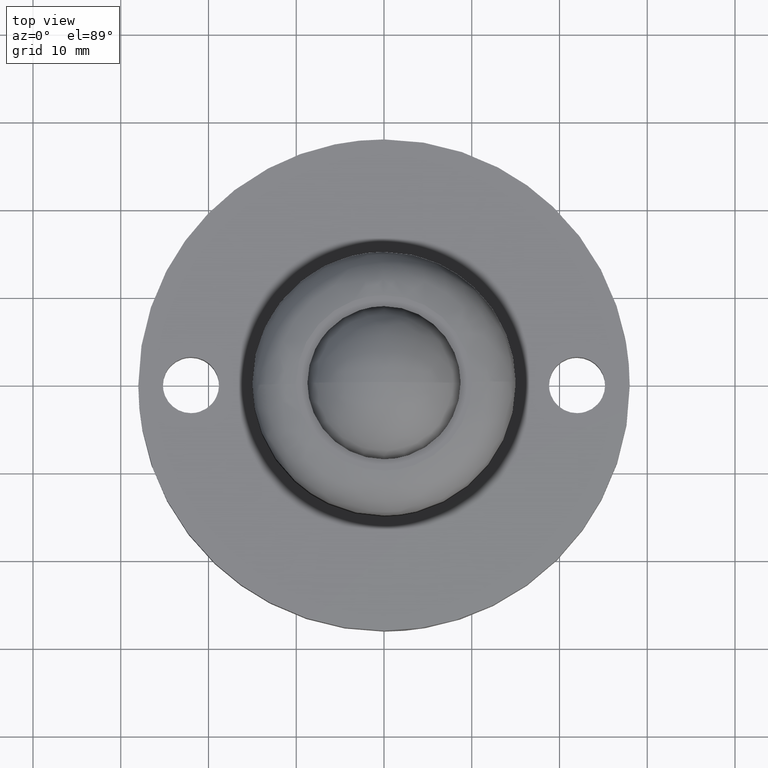
[diagram: clean part render]
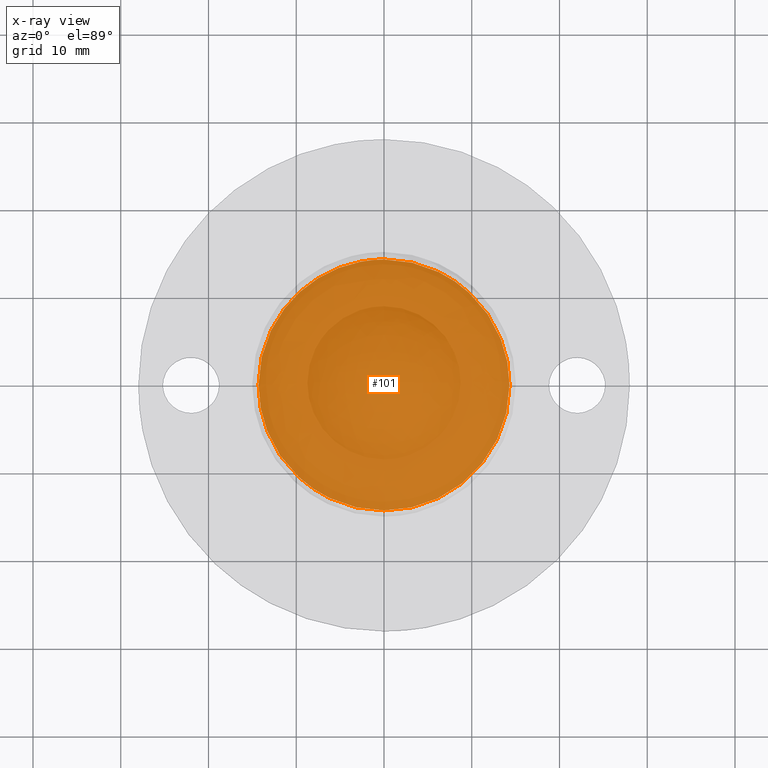
[diagram: x-ray — body ghosted, one internal face saturated and labeled with its STEP entity id]
A machine part, top view, then the same camera in x-ray: the body is ghosted and one INTERNAL B-rep face — a face not visible from any outside direction — is saturated and labeled: STEP entity #101.
In plain terms, the highlighted face is a freeform B-spline surface patch.
Its self-contained STEP definition (entity closure, byte-faithful):
#5=CARTESIAN_POINT('',(15.728569944567321,-15.728569944567321,6.000000000000070));
#6=CARTESIAN_POINT('',(-15.728570711679099,-15.728569944567321,6.000000000000070));
#7=CARTESIAN_POINT('',(15.728569944567321,15.728570711679090,6.000000000000070));
#8=CARTESIAN_POINT('',(-15.728570711679099,15.728570711679090,6.000000000000070));
#9=B_SPLINE_SURFACE_WITH_KNOTS('',1,1,((#5,#7),(#6,#8)),.UNSPECIFIED.,.F.,.F.,.U.,(2,2),(2,2),(0.0,31.457140656246420),(0.0,31.457140656246409),.UNSPECIFIED.);
#10=CARTESIAN_POINT('',(-9.712347651176646,-10.495728028405130,6.000000000000091));
#11=VERTEX_POINT('',#10);
#12=CARTESIAN_POINT('',(-14.299999999999701,0.0,6.000000000000091));
#13=VERTEX_POINT('',#12);
#14=CARTESIAN_POINT('',(-9.712347651176646,-10.495728028405130,6.000000000000091));
#15=CARTESIAN_POINT('',(-10.230460132852050,-10.016318116489170,6.000000000000109));
#16=CARTESIAN_POINT('',(-11.279458940469750,-8.890531173002458,6.000000000000048));
#17=CARTESIAN_POINT('',(-12.392091300817009,-7.225665586477279,6.000000000000157));
#18=CARTESIAN_POINT('',(-13.335229953225360,-5.292590870205071,6.000000000000007));
#19=CARTESIAN_POINT('',(-14.081110467844640,-3.007647375670150,6.000000000000171));
#20=CARTESIAN_POINT('',(-14.300198719727049,-1.074187194305119,6.000000000000062));
#21=CARTESIAN_POINT('',(-14.299999999999701,0.0,6.000000000000091));
#22=B_SPLINE_CURVE_WITH_KNOTS('',3,(#14,#15,#16,#17,#18,#19,#20,#21),.UNSPECIFIED.,.F.,.U.,(4,1,1,1,1,4),(0.000000013053748,2.117663875193461,4.603636852041908,5.984701437662268,8.562745514531358,11.785286344685961),.UNSPECIFIED.);
#23=EDGE_CURVE('',#11,#13,#22,.T.);
#24=ORIENTED_EDGE('',*,*,#23,.F.);
#25=CARTESIAN_POINT('',(-0.000000525152832,-14.299999999999690,6.000000000000091));
#26=VERTEX_POINT('',#25);
#27=CARTESIAN_POINT('',(-0.000000525152832,-14.299999999999690,6.000000000000091));
#28=CARTESIAN_POINT('',(-0.945382675460881,-14.300122084630830,6.000000000000111));
#29=CARTESIAN_POINT('',(-2.307775246459841,-14.164390636338030,6.000000000000053));
#30=CARTESIAN_POINT('',(-4.388332357633820,-13.650638263055679,6.000000000000143));
#31=CARTESIAN_POINT('',(-6.132686956044545,-12.979127535149351,5.999999999999970));
#32=CARTESIAN_POINT('',(-8.044517828587827,-11.886576224703591,6.000000000000226));
#33=CARTESIAN_POINT('',(-9.161360434460715,-11.005648379046651,6.000000000000004));
#34=CARTESIAN_POINT('',(-9.712347651176646,-10.495728028405130,6.000000000000091));
#35=B_SPLINE_CURVE_WITH_KNOTS('',3,(#27,#28,#29,#30,#31,#32,#33,#34),.UNSPECIFIED.,.F.,.U.,(4,1,1,1,1,4),(0.000000010414418,2.836115005019772,4.087345557602619,6.422962746740893,8.424930161895221,10.677136200359170),.UNSPECIFIED.);
#36=EDGE_CURVE('',#26,#11,#35,.T.);
#37=ORIENTED_EDGE('',*,*,#36,.F.);
#38=CARTESIAN_POINT('',(14.299999999999701,0.0,6.000000000000091));
#39=VERTEX_POINT('',#38);
#40=CARTESIAN_POINT('',(14.299999999999701,0.0,6.000000000000091));
#41=CARTESIAN_POINT('',(14.300020251049871,-0.643449886064511,6.000000000000075));
#42=CARTESIAN_POINT('',(14.207072105615230,-2.018094110817895,6.000000000000109));
#43=CARTESIAN_POINT('',(13.714114829329640,-4.312471873056986,6.000000000000084));
#44=CARTESIAN_POINT('',(12.798455525810750,-6.542441901983058,6.000000000000067));
#45=CARTESIAN_POINT('',(11.700011249776949,-8.276785826671512,6.000000000000152));
#46=CARTESIAN_POINT('',(10.598405794812750,-9.644606837401920,6.000000000000117));
#47=CARTESIAN_POINT('',(9.433815966381193,-10.802086820986920,6.000000000000018));
#48=CARTESIAN_POINT('',(8.104540581581208,-11.813426340475640,6.000000000000121));
#49=CARTESIAN_POINT('',(6.753609590701603,-12.634434016744271,6.000000000000109));
#50=CARTESIAN_POINT('',(5.058317254134202,-13.436394448220019,6.000000000000228));
#51=CARTESIAN_POINT('',(2.749262229839114,-14.121316268966170,5.999999999999652));
#52=CARTESIAN_POINT('',(0.935940702007310,-14.300126043135171,6.000000000000436));
#53=CARTESIAN_POINT('',(-0.000000525152832,-14.299999999999690,6.000000000000091));
#54=B_SPLINE_CURVE_WITH_KNOTS('',3,(#40,#41,#42,#43,#44,#45,#46,#47,#48,#49,#50,#51,#52,#53),.UNSPECIFIED.,.F.,.U.,(4,1,1,1,1,1,1,1,1,1,1,4),(0.000000043469601,1.930352501267038,4.123956115908683,7.019515504626323,9.125366822881944,10.266051776653489,12.284130896196530,14.039011209367700,15.267426820802140,17.022305552835679,19.654623322496409,22.462423006119050),.UNSPECIFIED.);
#55=EDGE_CURVE('',#39,#26,#54,.T.);
#56=ORIENTED_EDGE('',*,*,#55,.F.);
#57=CARTESIAN_POINT('',(9.712347651176696,10.495728028405180,6.000000000000092));
#58=VERTEX_POINT('',#57);
#59=CARTESIAN_POINT('',(9.712347651176696,10.495728028405180,6.000000000000092));
#60=CARTESIAN_POINT('',(10.388219441979750,9.870470132631603,6.000000000000082));
#61=CARTESIAN_POINT('',(11.413374930848210,8.718995216043627,6.000000000000102));
#62=CARTESIAN_POINT('',(12.568917070580440,6.902589771814768,6.000000000000084));
#63=CARTESIAN_POINT('',(13.403435518772170,5.119967905062826,6.000000000000079));
#64=CARTESIAN_POINT('',(14.104252889991059,2.823486419276767,6.000000000000105));
#65=CARTESIAN_POINT('',(14.300193328997210,1.043503160773396,6.000000000000090));
#66=CARTESIAN_POINT('',(14.299999999999701,0.0,6.000000000000091));
#67=B_SPLINE_CURVE_WITH_KNOTS('',3,(#59,#60,#61,#62,#63,#64,#65,#66),.UNSPECIFIED.,.F.,.U.,(4,1,1,1,1,4),(0.000000013051759,2.762176014050581,4.603636852041265,6.445075786953939,8.654819179867742,11.785286344685989),.UNSPECIFIED.);
#68=EDGE_CURVE('',#58,#39,#67,.T.);
#69=ORIENTED_EDGE('',*,*,#68,.F.);
#70=CARTESIAN_POINT('',(0.000000525153124,14.299999999999690,6.000000000000091));
#71=VERTEX_POINT('',#70);
#72=CARTESIAN_POINT('',(0.000000525153124,14.299999999999690,6.000000000000091));
#73=CARTESIAN_POINT('',(0.834154726914235,14.300075035325129,6.000000000000074));
#74=CARTESIAN_POINT('',(2.252186390819979,14.175560544228521,6.000000000000092));
#75=CARTESIAN_POINT('',(4.012595821673890,13.751724392736129,6.000000000000111));
#76=CARTESIAN_POINT('',(5.482631214150124,13.234485926744361,6.000000000000060));
#77=CARTESIAN_POINT('',(7.422996762961751,12.320118622784030,6.000000000000180));
#78=CARTESIAN_POINT('',(8.855414933040166,11.289164351429649,6.000000000000084));
#79=CARTESIAN_POINT('',(9.712347651176696,10.495728028405180,6.000000000000092));
#80=B_SPLINE_CURVE_WITH_KNOTS('',3,(#72,#73,#74,#75,#76,#77,#78,#79),.UNSPECIFIED.,.F.,.U.,(4,1,1,1,1,4),(0.000000010415265,2.502453110779914,4.254173464036454,5.421969226982484,7.173696229127936,10.677136200358911),.UNSPECIFIED.);
#81=EDGE_CURVE('',#71,#58,#80,.T.);
#82=ORIENTED_EDGE('',*,*,#81,.F.);
#83=CARTESIAN_POINT('',(-14.299999999999701,0.0,6.000000000000091));
#84=CARTESIAN_POINT('',(-14.300099892406999,0.877438812498670,6.000000000000100));
#85=CARTESIAN_POINT('',(-14.159547658026280,2.398288601428360,6.000000000000087));
#86=CARTESIAN_POINT('',(-13.561238533635510,4.726450166630754,6.000000000000108));
#87=CARTESIAN_POINT('',(-12.692639889262550,6.718866256936191,6.000000000000067));
#88=CARTESIAN_POINT('',(-11.441633513489609,8.667768068607090,6.000000000000090));
#89=CARTESIAN_POINT('',(-9.853117926576989,10.475587786226191,6.000000000000148));
#90=CARTESIAN_POINT('',(-7.934127355219138,11.982646874757300,6.000000000000076));
#91=CARTESIAN_POINT('',(-5.997848466105453,13.025121645295769,6.000000000000087));
#92=CARTESIAN_POINT('',(-4.355841919533587,13.652728025899849,6.000000000000100));
#93=CARTESIAN_POINT('',(-2.398282028073090,14.155891111635199,6.000000000000076));
#94=CARTESIAN_POINT('',(-0.935942485249157,14.300123250522130,6.000000000000120));
#95=CARTESIAN_POINT('',(0.000000525153124,14.299999999999690,6.000000000000091));
#96=B_SPLINE_CURVE_WITH_KNOTS('',3,(#83,#84,#85,#86,#87,#88,#89,#90,#91,#92,#93,#94,#95),.UNSPECIFIED.,.F.,.U.,(4,1,1,1,1,1,1,1,1,1,4),(0.000000043442796,2.632300666145902,4.562674342584632,7.195001203803839,9.125366822865004,11.494442143606820,14.389975671391120,16.408096000791900,18.075238154048620,19.654623322493229,22.462423006119359),.UNSPECIFIED.);
#97=EDGE_CURVE('',#13,#71,#96,.T.);
#98=ORIENTED_EDGE('',*,*,#97,.F.);
#99=EDGE_LOOP('',(#24,#37,#56,#69,#82,#98));
#100=FACE_OUTER_BOUND('',#99,.T.);
#101=ADVANCED_FACE('',(#100),#9,.F.);